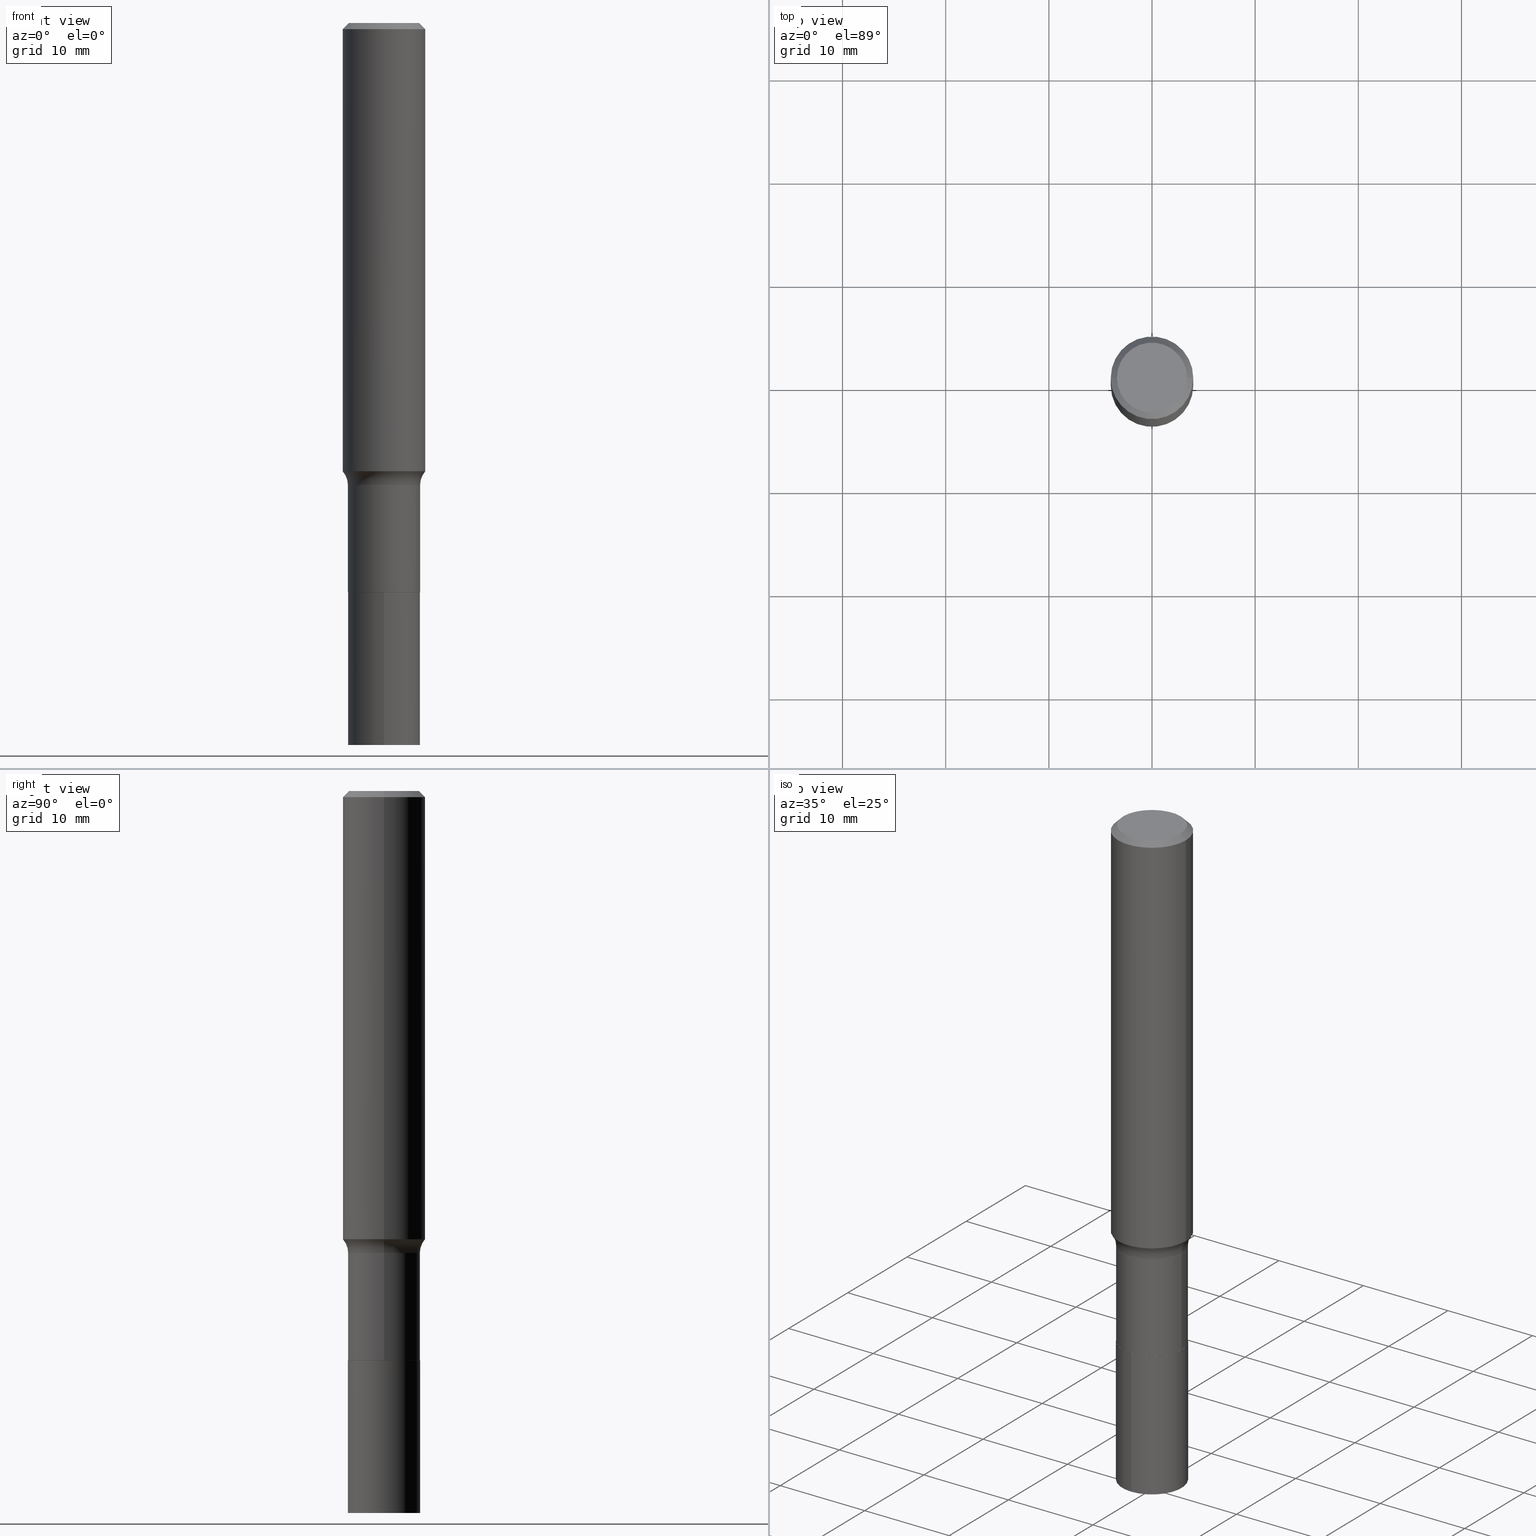
[diagram: canonical four-view strip — front | top / right | iso, engineering-drawing reading convention]
A machine part, canonical four-view strip (front | top / right | iso — engineering-drawing reading convention). The complete STEP part file that produces these views, byte-faithful:
ISO-10303-21;
HEADER;
FILE_DESCRIPTION (( 'STEP AP203' ),
    '1' );
FILE_NAME ('67116.STEP',
    '2024-04-19T15:53:53',
    ( '' ),
    ( '' ),
    'SwSTEP 2.0',
    'SolidWorks 2023',
    '' );
FILE_SCHEMA (( 'CONFIG_CONTROL_DESIGN' ));
ENDSEC;

DATA;
#1 = DIRECTION ( 'NONE',  ( 1.000000000000000000, -6.982962677686265922E-15, 0.000000000000000000 ) ) ;
#2 = CARTESIAN_POINT ( 'NONE',  ( 5.313759168959684125E-29, -7.586639801172272343E-15, -2.172900000000000276 ) ) ;
#3 =( CONVERSION_BASED_UNIT ( 'INCH', #321 ) LENGTH_UNIT ( ) NAMED_UNIT ( #246 ) );
#4 = CARTESIAN_POINT ( 'NONE',  ( 0.1575000000000000844, -1.099816621735587677E-15, 7.679978421878603638E-30 ) ) ;
#5 = DIRECTION ( 'NONE',  ( -2.445468806185136597E-29, 3.491481338843145583E-15, 1.000000000000000000 ) ) ;
#6 = PERSON_AND_ORGANIZATION_ROLE ( 'design_owner' ) ;
#7 = ADVANCED_FACE ( 'NONE', ( #42 ), #16, .T. ) ;
#8 = DIRECTION ( 'NONE',  ( 1.000000000000000000, -6.982962677686266711E-15, 4.876170806578254279E-29 ) ) ;
#9 = ADVANCED_FACE ( 'NONE', ( #414 ), #193, .T. ) ;
#10 = VERTEX_POINT ( 'NONE', #20 ) ;
#11 = APPROVAL_ROLE ( '' ) ;
#12 = CARTESIAN_POINT ( 'NONE',  ( 4.312828786588107303E-29, -6.157576489183771935E-15, -1.763600000000000056 ) ) ;
#13 = ORIENTED_EDGE ( 'NONE', *, *, #41, .T. ) ;
#14 = ORIENTED_EDGE ( 'NONE', *, *, #442, .T. ) ;
#15 = ORIENTED_EDGE ( 'NONE', *, *, #260, .F. ) ;
#16 = CONICAL_SURFACE ( 'NONE', #257, 0.1575000000000000011, 0.7853981633974452814 ) ;
#17 = ORIENTED_EDGE ( 'NONE', *, *, #304, .F. ) ;
#18 = CIRCLE ( 'NONE', #287, 0.1575000000000001954 ) ;
#19 = EDGE_LOOP ( 'NONE', ( #159, #198, #228, #377 ) ) ;
#20 = CARTESIAN_POINT ( 'NONE',  ( -0.1377999999999999781, -5.892107384965892698E-15, -1.763600000000000056 ) ) ;
#21 = EDGE_CURVE ( 'NONE', #425, #10, #161, .T. ) ;
#22 = DIRECTION ( 'NONE',  ( -2.445843148108282569E-29, 3.490945259902981668E-15, 1.000000000000000000 ) ) ;
#23 = DIRECTION ( 'NONE',  ( -2.445468806185136597E-29, 3.491481338843145583E-15, 1.000000000000000000 ) ) ;
#24 = VERTEX_POINT ( 'NONE', #78 ) ;
#25 = CARTESIAN_POINT ( 'NONE',  ( 5.312536434556590203E-29, -7.584894060502850050E-15, -2.172400000000000109 ) ) ;
#26 = DIRECTION ( 'NONE',  ( 1.000000000000000000, -6.982962677686269866E-15, 0.000000000000000000 ) ) ;
#27 = ADVANCED_FACE ( 'NONE', ( #223 ), #340, .T. ) ;
#28 = DIRECTION ( 'NONE',  ( -2.445843148108282849E-29, 3.490945259902982062E-15, 1.000000000000000000 ) ) ;
#29 = CYLINDRICAL_SURFACE ( 'NONE', #90, 0.1575000000000000844 ) ;
#30 = AXIS2_PLACEMENT_3D ( 'NONE', #111, #142, #397 ) ;
#31 = DIRECTION ( 'NONE',  ( 1.000000000000000000, -6.982962677686265922E-15, 0.000000000000000000 ) ) ;
#32 = CARTESIAN_POINT ( 'NONE',  ( -9.622522569851000294E-16, -0.1378000000000096370, -2.755900000000000016 ) ) ;
#33 = EDGE_CURVE ( 'NONE', #24, #270, #449, .T. ) ;
#34 = CARTESIAN_POINT ( 'NONE',  ( 0.1378000000000000058, -8.547146317488017527E-15, -2.172400000000000109 ) ) ;
#35 = CARTESIAN_POINT ( 'NONE',  ( 5.777420054612418477E-31, -8.248624663016979071E-17, -0.02362500000000013547 ) ) ;
#36 = AXIS2_PLACEMENT_3D ( 'NONE', #385, #125, #460 ) ;
#37 = DIRECTION ( 'NONE',  ( -2.445468806185136597E-29, 3.491481338843145583E-15, 1.000000000000000000 ) ) ;
#38 = DATE_AND_TIME ( #365, #191 ) ;
#39 = CARTESIAN_POINT ( 'NONE',  ( -8.908126786626385992E-30, -2.054916890174590023E-14, -2.755900000000000016 ) ) ;
#40 = APPROVAL_ROLE ( '' ) ;
#41 = EDGE_CURVE ( 'NONE', #301, #24, #234, .T. ) ;
#42 = FACE_OUTER_BOUND ( 'NONE', #85, .T. ) ;
#43 = CC_DESIGN_SECURITY_CLASSIFICATION ( #280, ( #438 ) ) ;
#44 = PERSON_AND_ORGANIZATION ( #243, #215 ) ;
#45 = ORIENTED_EDGE ( 'NONE', *, *, #56, .T. ) ;
#46 = DATE_AND_TIME ( #255, #176 ) ;
#47 = EDGE_LOOP ( 'NONE', ( #452, #292, #14, #348 ) ) ;
#48 = AXIS2_PLACEMENT_3D ( 'NONE', #12, #153, #291 ) ;
#49 = PERSON_AND_ORGANIZATION_ROLE ( 'classification_officer' ) ;
#50 = EDGE_LOOP ( 'NONE', ( #241, #55, #195, #17 ) ) ;
#51 = CC_DESIGN_APPROVAL ( #391, ( #280 ) ) ;
#52 = AXIS2_PLACEMENT_3D ( 'NONE', #163, #129, #169 ) ;
#53 = APPROVAL ( #118, 'UNSPECIFIED' ) ;
#54 = DIRECTION ( 'NONE',  ( -6.982962677686265922E-15, -1.000000000000000000, 3.964946289788480896E-15 ) ) ;
#55 = ORIENTED_EDGE ( 'NONE', *, *, #465, .T. ) ;
#56 = EDGE_CURVE ( 'NONE', #270, #24, #273, .T. ) ;
#57 = FACE_OUTER_BOUND ( 'NONE', #409, .T. ) ;
#58 = APPROVAL ( #376, 'UNSPECIFIED' ) ;
#59 = CARTESIAN_POINT ( 'NONE',  ( -5.014852121625176635E-47, 7.159879756154496113E-33, 2.050671065172246833E-18 ) ) ;
#60 = AXIS2_PLACEMENT_3D ( 'NONE', #267, #264, #357 ) ;
#61 = ORIENTED_EDGE ( 'NONE', *, *, #63, .T. ) ;
#62 = CARTESIAN_POINT ( 'NONE',  ( 9.791278898774711484E-16, 0.1377999999999924285, -2.172900000000000276 ) ) ;
#63 = EDGE_CURVE ( 'NONE', #441, #301, #141, .T. ) ;
#64 = PRODUCT ( '67116', '67116', '', ( #221 ) ) ;
#65 = DIRECTION ( 'NONE',  ( -2.445843148108282849E-29, 3.490945259902982062E-15, 1.000000000000000000 ) ) ;
#66 = DIRECTION ( 'NONE',  ( -2.445468806185136877E-29, 3.491481338843145188E-15, 1.000000000000000000 ) ) ;
#67 = VECTOR ( 'NONE', #402, 39.37007874015748143 ) ;
#68 = CC_DESIGN_PERSON_AND_ORGANIZATION_ASSIGNMENT ( #448, #253, ( #220 ) ) ;
#69 = DIRECTION ( 'NONE',  ( -2.445843148108282569E-29, 3.490945259902981668E-15, 1.000000000000000000 ) ) ;
#70 = AXIS2_PLACEMENT_3D ( 'NONE', #149, #185, #8 ) ;
#71 =( LENGTH_UNIT ( ) NAMED_UNIT ( * ) SI_UNIT ( $, .METRE. ) );
#72 = DIRECTION ( 'NONE',  ( -0.7071067811865453523, 2.468850131082234184E-15, -0.7071067811865496822 ) ) ;
#73 = FACE_OUTER_BOUND ( 'NONE', #372, .T. ) ;
#74 = AXIS2_PLACEMENT_3D ( 'NONE', #39, #433, #108 ) ;
#75 = PERSON_AND_ORGANIZATION ( #243, #215 ) ;
#76 = CARTESIAN_POINT ( 'NONE',  ( 0.1377999999999999781, -7.119828746168939412E-15, -1.763600000000000056 ) ) ;
#77 = ADVANCED_FACE ( 'NONE', ( #194 ), #99, .F. ) ;
#78 = CARTESIAN_POINT ( 'NONE',  ( 9.791278898774855451E-16, 0.1377999999999924285, -2.172900000000000276 ) ) ;
#79 = COORDINATED_UNIVERSAL_TIME_OFFSET ( 5, 0, .BEHIND. ) ;
#80 = DIRECTION ( 'NONE',  ( -2.445468806185136597E-29, 3.491481338843145583E-15, 1.000000000000000000 ) ) ;
#81 = ORIENTED_EDGE ( 'NONE', *, *, #430, .T. ) ;
#82 = EDGE_LOOP ( 'NONE', ( #297, #81, #254, #450 ) ) ;
#83 = DIRECTION ( 'NONE',  ( -2.445468806185136597E-29, 3.491481338843145583E-15, 1.000000000000000000 ) ) ;
#84 = PERSON_AND_ORGANIZATION_ROLE ( 'design_supplier' ) ;
#85 = EDGE_LOOP ( 'NONE', ( #459, #309, #130, #132 ) ) ;
#86 = CARTESIAN_POINT ( 'NONE',  ( 5.777420054612418477E-31, -8.248624663016979071E-17, -0.02362500000000013547 ) ) ;
#87 = ORIENTED_EDGE ( 'NONE', *, *, #226, .F. ) ;
#88 = CARTESIAN_POINT ( 'NONE',  ( 4.312828786588107303E-29, -6.157576489183771935E-15, -1.763600000000000056 ) ) ;
#89 = DIRECTION ( 'NONE',  ( 1.000000000000000000, -6.982962677686265922E-15, 4.876176775795935793E-29 ) ) ;
#90 = AXIS2_PLACEMENT_3D ( 'NONE', #237, #275, #245 ) ;
#91 = EDGE_CURVE ( 'NONE', #184, #341, #387, .T. ) ;
#92 = ORIENTED_EDGE ( 'NONE', *, *, #105, .T. ) ;
#93 = ADVANCED_FACE ( 'NONE', ( #311 ), #235, .F. ) ;
#94 = DIRECTION ( 'NONE',  ( -2.438088387897960049E-29, 3.491481338843145188E-15, 1.000000000000000000 ) ) ;
#95 = ORIENTED_EDGE ( 'NONE', *, *, #33, .T. ) ;
#96 = LINE ( 'NONE', #424, #238 ) ;
#97 = EDGE_LOOP ( 'NONE', ( #455, #236, #467, #87 ) ) ;
#98 = APPROVAL_PERSON_ORGANIZATION ( #44, #391, #11 ) ;
#99 = PLANE ( 'NONE',  #324 ) ;
#100 = AXIS2_PLACEMENT_3D ( 'NONE', #456, #22, #269 ) ;
#101 = AXIS2_PLACEMENT_3D ( 'NONE', #204, #131, #54 ) ;
#102 = CARTESIAN_POINT ( 'NONE',  ( 5.313759168959683004E-29, -7.586639801172270765E-15, -2.172899999999999832 ) ) ;
#103 = EDGE_LOOP ( 'NONE', ( #431, #261, #155, #119 ) ) ;
#104 = DIRECTION ( 'NONE',  ( 1.000000000000000000, -6.982962677686265922E-15, 0.000000000000000000 ) ) ;
#105 = EDGE_CURVE ( 'NONE', #256, #425, #308, .T. ) ;
#106 = TOROIDAL_SURFACE ( 'NONE', #445, 0.2177999999999999936, 0.08000000000000009881 ) ;
#107 = PRODUCT_DEFINITION_SHAPE ( 'NONE', 'NONE',  #220 ) ;
#108 = DIRECTION ( 'NONE',  ( -6.982962677686265922E-15, -1.000000000000000000, 3.490945259902982062E-15 ) ) ;
#109 = DIRECTION ( 'NONE',  ( 0.7071067811864388819, -2.468850131081119129E-15, 0.7071067811866561525 ) ) ;
#110 = DIRECTION ( 'NONE',  ( 1.000000000000000000, -6.982962677686269866E-15, 0.000000000000000000 ) ) ;
#111 = CARTESIAN_POINT ( 'NONE',  ( -0.2177999999999999936, -4.610014410698272986E-15, -1.763600000000000056 ) ) ;
#112 = EDGE_CURVE ( 'NONE', #160, #256, #232, .T. ) ;
#113 = DIRECTION ( 'NONE',  ( 1.000000000000000000, -6.982962677686266711E-15, 4.876170806578254279E-29 ) ) ;
#114 = DIRECTION ( 'NONE',  ( -2.445468806185136597E-29, 3.491481338843145583E-15, 1.000000000000000000 ) ) ;
#115 = AXIS2_PLACEMENT_3D ( 'NONE', #214, #436, #113 ) ;
#116 =( NAMED_UNIT ( * ) SI_UNIT ( $, .STERADIAN. ) SOLID_ANGLE_UNIT ( ) );
#117 = CONICAL_SURFACE ( 'NONE', #374, 0.1373000000000000054, 0.7853981633972946241 ) ;
#118 = APPROVAL_STATUS ( 'not_yet_approved' ) ;
#119 = ORIENTED_EDGE ( 'NONE', *, *, #307, .F. ) ;
#120 = COORDINATED_UNIVERSAL_TIME_OFFSET ( 5, 0, .BEHIND. ) ;
#121 = PERSON_AND_ORGANIZATION ( #243, #215 ) ;
#122 = ADVANCED_FACE ( 'NONE', ( #57 ), #197, .F. ) ;
#123 = DIRECTION ( 'NONE',  ( -1.000000000000000000, 6.982962677686265922E-15, 0.000000000000000000 ) ) ;
#124 = ADVANCED_FACE ( 'NONE', ( #381 ), #170, .T. ) ;
#125 = DIRECTION ( 'NONE',  ( 2.445468806185136597E-29, -3.491481338843145583E-15, -1.000000000000000000 ) ) ;
#126 = CIRCLE ( 'NONE', #380, 0.1575000000000001954 ) ;
#127 = UNCERTAINTY_MEASURE_WITH_UNIT (LENGTH_MEASURE( 1.000000000000000082E-05 ), #3, 'distance_accuracy_value', 'NONE');
#128 = CIRCLE ( 'NONE', #283, 0.1378000000000000058 ) ;
#129 = DIRECTION ( 'NONE',  ( -2.445843148108282569E-29, 3.490945259902981668E-15, 1.000000000000000000 ) ) ;
#130 = ORIENTED_EDGE ( 'NONE', *, *, #91, .T. ) ;
#131 = DIRECTION ( 'NONE',  ( -2.445843148108282569E-29, 3.490945259902981668E-15, 1.000000000000000000 ) ) ;
#132 = ORIENTED_EDGE ( 'NONE', *, *, #284, .F. ) ;
#133 = FACE_OUTER_BOUND ( 'NONE', #103, .T. ) ;
#134 = AXIS2_PLACEMENT_3D ( 'NONE', #242, #206, #420 ) ;
#135 = VECTOR ( 'NONE', #421, 39.37007874015748143 ) ;
#136 = ORIENTED_EDGE ( 'NONE', *, *, #139, .F. ) ;
#137 = DIRECTION ( 'NONE',  ( -2.445468806185136597E-29, 3.491481338843145583E-15, 1.000000000000000000 ) ) ;
#138 = PLANE ( 'NONE',  #74 ) ;
#139 = EDGE_CURVE ( 'NONE', #301, #441, #258, .T. ) ;
#140 = LINE ( 'NONE', #279, #67 ) ;
#141 = CIRCLE ( 'NONE', #60, 0.1378000000000000058 ) ;
#142 = DIRECTION ( 'NONE',  ( 7.105427357601001859E-15, 1.000000000000000000, -3.491481338843145583E-15 ) ) ;
#143 = DIRECTION ( 'NONE',  ( 1.000000000000000000, -6.982962677686265922E-15, 0.000000000000000000 ) ) ;
#144 = ADVANCED_FACE ( 'NONE', ( #346 ), #303, .T. ) ;
#145 = CARTESIAN_POINT ( 'NONE',  ( 0.2177999999999999936, -7.678465760383841064E-15, -1.763600000000000056 ) ) ;
#146 = APPROVAL_STATUS ( 'not_yet_approved' ) ;
#147 = CIRCLE ( 'NONE', #115, 0.1338749999999999940 ) ;
#148 = APPROVAL_DATE_TIME ( #299, #58 ) ;
#149 = CARTESIAN_POINT ( 'NONE',  ( -1.002970424325035327E-46, 1.431975951230899223E-32, 4.101342130344493665E-18 ) ) ;
#150 = EDGE_CURVE ( 'NONE', #256, #160, #342, .T. ) ;
#151 = ORIENTED_EDGE ( 'NONE', *, *, #379, .T. ) ;
#152 = SHAPE_DEFINITION_REPRESENTATION ( #107, #422 ) ;
#153 = DIRECTION ( 'NONE',  ( -2.445468806185136597E-29, 3.491481338843145583E-15, 1.000000000000000000 ) ) ;
#154 = ORIENTED_EDGE ( 'NONE', *, *, #210, .T. ) ;
#155 = ORIENTED_EDGE ( 'NONE', *, *, #354, .T. ) ;
#156 = EDGE_CURVE ( 'NONE', #441, #270, #96, .T. ) ;
#157 = DATE_TIME_ROLE ( 'creation_date' ) ;
#158 = VECTOR ( 'NONE', #65, 39.37007874015748143 ) ;
#159 = ORIENTED_EDGE ( 'NONE', *, *, #196, .F. ) ;
#160 = VERTEX_POINT ( 'NONE', #389 ) ;
#161 = LINE ( 'NONE', #302, #322 ) ;
#162 = ORIENTED_EDGE ( 'NONE', *, *, #252, .T. ) ;
#163 = CARTESIAN_POINT ( 'NONE',  ( 5.313759168959683004E-29, -7.586639801172270765E-15, -2.172899999999999832 ) ) ;
#164 = CLOSED_SHELL ( 'NONE', ( #144, #316, #325, #122 ) ) ;
#165 = DIRECTION ( 'NONE',  ( -2.445468806185136597E-29, 3.491481338843145583E-15, 1.000000000000000000 ) ) ;
#166 = ORIENTED_EDGE ( 'NONE', *, *, #465, .F. ) ;
#167 = CARTESIAN_POINT ( 'NONE',  ( 0.000000000000000000, 0.000000000000000000, 0.000000000000000000 ) ) ;
#168 = DIRECTION ( 'NONE',  ( -2.445468806185136597E-29, 3.491481338843145583E-15, 1.000000000000000000 ) ) ;
#169 = DIRECTION ( 'NONE',  ( -6.982962677686265922E-15, -1.000000000000000000, 3.964946289788480896E-15 ) ) ;
#170 = CYLINDRICAL_SURFACE ( 'NONE', #451, 0.1378000000000000058 ) ;
#171 = AXIS2_PLACEMENT_3D ( 'NONE', #59, #457, #382 ) ;
#172 = ORIENTED_EDGE ( 'NONE', *, *, #354, .F. ) ;
#173 = ADVANCED_FACE ( 'NONE', ( #133 ), #29, .T. ) ;
#174 = CARTESIAN_POINT ( 'NONE',  ( -0.1338749999999999940, 9.760872517903331886E-16, 4.101342130337811459E-18 ) ) ;
#175 = FACE_OUTER_BOUND ( 'NONE', #230, .T. ) ;
#176 = LOCAL_TIME ( 11, 53, 53.00000000000000000, #120 ) ;
#177 = FACE_OUTER_BOUND ( 'NONE', #272, .T. ) ;
#178 = ADVANCED_FACE ( 'NONE', ( #73 ), #359, .F. ) ;
#179 = AXIS2_PLACEMENT_3D ( 'NONE', #353, #427, #26 ) ;
#180 = CARTESIAN_POINT ( 'NONE',  ( 5.313759168959684125E-29, -7.586639801172272343E-15, -2.172900000000000276 ) ) ;
#181 = DATE_TIME_ROLE ( 'classification_date' ) ;
#182 = APPROVAL_ROLE ( '' ) ;
#183 = CC_DESIGN_PERSON_AND_ORGANIZATION_ASSIGNMENT ( #337, #84, ( #438 ) ) ;
#184 = VERTEX_POINT ( 'NONE', #361 ) ;
#185 = DIRECTION ( 'NONE',  ( -2.445468806185136597E-29, 3.491481338843145583E-15, 1.000000000000000000 ) ) ;
#186 = CIRCLE ( 'NONE', #30, 0.08000000000000009881 ) ;
#187 = COORDINATED_UNIVERSAL_TIME_OFFSET ( 5, 0, .BEHIND. ) ;
#188 = CC_DESIGN_DATE_AND_TIME_ASSIGNMENT ( #410, #157, ( #220 ) ) ;
#189 = APPROVAL_DATE_TIME ( #46, #53 ) ;
#190 = FACE_OUTER_BOUND ( 'NONE', #97, .T. ) ;
#191 = LOCAL_TIME ( 11, 53, 53.00000000000000000, #286 ) ;
#192 = ORIENTED_EDGE ( 'NONE', *, *, #41, .F. ) ;
#193 = CYLINDRICAL_SURFACE ( 'NONE', #296, 0.1575000000000000844 ) ;
#194 = FACE_OUTER_BOUND ( 'NONE', #461, .T. ) ;
#195 = ORIENTED_EDGE ( 'NONE', *, *, #411, .T. ) ;
#196 = EDGE_CURVE ( 'NONE', #300, #184, #140, .T. ) ;
#197 = PLANE ( 'NONE',  #330 ) ;
#198 = ORIENTED_EDGE ( 'NONE', *, *, #210, .F. ) ;
#199 = DIRECTION ( 'NONE',  ( 1.000000000000000000, -6.982962677686267499E-15, 4.883557194083112901E-29 ) ) ;
#200 = AXIS2_PLACEMENT_3D ( 'NONE', #180, #114, #429 ) ;
#201 = CARTESIAN_POINT ( 'NONE',  ( -0.1373000000000000054, -6.611064624973654947E-15, -2.172900000000000276 ) ) ;
#202 = ORIENTED_EDGE ( 'NONE', *, *, #91, .F. ) ;
#203 = CARTESIAN_POINT ( 'NONE',  ( -0.1378000000000000336, -5.892107384965891909E-15, -2.172400000000000109 ) ) ;
#204 = CARTESIAN_POINT ( 'NONE',  ( 6.739685724306814341E-29, -9.621860887695710828E-15, -2.755900000000000460 ) ) ;
#205 = CC_DESIGN_DATE_AND_TIME_ASSIGNMENT ( #218, #181, ( #280 ) ) ;
#206 = DIRECTION ( 'NONE',  ( -2.445843148108282569E-29, 3.490945259902981668E-15, 1.000000000000000000 ) ) ;
#207 = MANIFOLD_SOLID_BREP ( 'Body-Move/Copy2[2]', #395 ) ;
#208 = ORIENTED_EDGE ( 'NONE', *, *, #156, .T. ) ;
#209 = LOCAL_TIME ( 11, 53, 53.00000000000000000, #187 ) ;
#210 = EDGE_CURVE ( 'NONE', #315, #300, #147, .T. ) ;
#211 = DIRECTION ( 'NONE',  ( -2.445468806185136877E-29, 3.491481338843145188E-15, 1.000000000000000000 ) ) ;
#212 = AXIS2_PLACEMENT_3D ( 'NONE', #463, #355, #271 ) ;
#213 = DIRECTION ( 'NONE',  ( -6.982962677686265922E-15, -1.000000000000000000, 3.964946289788480896E-15 ) ) ;
#214 = CARTESIAN_POINT ( 'NONE',  ( -1.002970424325035327E-46, 1.431975951230899223E-32, 4.101342130344493665E-18 ) ) ;
#215 = ORGANIZATION ( 'UNSPECIFIED', 'UNSPECIFIED', '' ) ;
#216 = LINE ( 'NONE', #363, #408 ) ;
#217 = CIRCLE ( 'NONE', #419, 0.08000000000000009881 ) ;
#218 = DATE_AND_TIME ( #225, #446 ) ;
#219 = DIRECTION ( 'NONE',  ( -6.982962677686266711E-15, -1.000000000000000000, 3.491481338843145583E-15 ) ) ;
#220 = PRODUCT_DEFINITION ( 'UNKNOWN', '', #438, #334 ) ;
#221 = MECHANICAL_CONTEXT ( 'NONE', #416, 'mechanical' ) ;
#222 = CYLINDRICAL_SURFACE ( 'NONE', #263, 0.1378000000000000058 ) ;
#223 = FACE_OUTER_BOUND ( 'NONE', #19, .T. ) ;
#224 = ADVANCED_FACE ( 'NONE', ( #435 ), #352, .T. ) ;
#225 = CALENDAR_DATE ( 2024, 19, 4 ) ;
#226 = EDGE_CURVE ( 'NONE', #332, #312, #319, .T. ) ;
#227 = VERTEX_POINT ( 'NONE', #400 ) ;
#228 = ORIENTED_EDGE ( 'NONE', *, *, #284, .T. ) ;
#229 = SECURITY_CLASSIFICATION_LEVEL ( 'unclassified' ) ;
#230 = EDGE_LOOP ( 'NONE', ( #390, #92, #335, #278 ) ) ;
#231 = ORIENTED_EDGE ( 'NONE', *, *, #156, .F. ) ;
#232 = CIRCLE ( 'NONE', #179, 0.1373000000000000054 ) ;
#233 = CARTESIAN_POINT ( 'NONE',  ( 4.312828786588107303E-29, -6.157576489183771935E-15, -1.763600000000000056 ) ) ;
#234 = LINE ( 'NONE', #62, #158 ) ;
#235 = PLANE ( 'NONE',  #171 ) ;
#236 = ORIENTED_EDGE ( 'NONE', *, *, #21, .T. ) ;
#237 = CARTESIAN_POINT ( 'NONE',  ( 0.000000000000000000, 0.000000000000000000, 0.000000000000000000 ) ) ;
#238 = VECTOR ( 'NONE', #28, 39.37007874015748143 ) ;
#239 = CC_DESIGN_PERSON_AND_ORGANIZATION_ASSIGNMENT ( #75, #6, ( #64 ) ) ;
#240 = CARTESIAN_POINT ( 'NONE',  ( 5.777420054612418477E-31, -8.248624663016979071E-17, -0.02362500000000013547 ) ) ;
#241 = ORIENTED_EDGE ( 'NONE', *, *, #244, .F. ) ;
#242 = CARTESIAN_POINT ( 'NONE',  ( 5.313759168959683004E-29, -7.586639801172270765E-15, -2.172899999999999832 ) ) ;
#243 = PERSON ( 'UNSPECIFIED', 'UNSPECIFIED', 'UNSPECIFIED', ('UNSPECIFIED'), ('UNSPECIFIED'), ('UNSPECIFIED') ) ;
#244 = EDGE_CURVE ( 'NONE', #412, #227, #126, .T. ) ;
#245 = DIRECTION ( 'NONE',  ( 1.000000000000000000, -6.982962677686267499E-15, 4.876176775795936353E-29 ) ) ;
#246 = DIMENSIONAL_EXPONENTS ( 1.000000000000000000, 0.000000000000000000, 0.000000000000000000, 0.000000000000000000, 0.000000000000000000, 0.000000000000000000, 0.000000000000000000 ) ;
#247 = CYLINDRICAL_SURFACE ( 'NONE', #262, 0.1378000000000000058 ) ;
#248 = CARTESIAN_POINT ( 'NONE',  ( 0.1378000000000000058, -9.622522569851674770E-16, 6.719371597046798536E-30 ) ) ;
#249 = CARTESIAN_POINT ( 'NONE',  ( -0.1575000000000000011, 1.017330375105417295E-15, -0.02362500000000013547 ) ) ;
#250 = AXIS2_PLACEMENT_3D ( 'NONE', #285, #137, #468 ) ;
#251 = CARTESIAN_POINT ( 'NONE',  ( 0.000000000000000000, 0.000000000000000000, 0.000000000000000000 ) ) ;
#252 = EDGE_CURVE ( 'NONE', #412, #341, #216, .T. ) ;
#253 = PERSON_AND_ORGANIZATION_ROLE ( 'creator' ) ;
#254 = ORIENTED_EDGE ( 'NONE', *, *, #226, .T. ) ;
#255 = CALENDAR_DATE ( 2024, 19, 4 ) ;
#256 = VERTEX_POINT ( 'NONE', #392 ) ;
#257 = AXIS2_PLACEMENT_3D ( 'NONE', #86, #454, #123 ) ;
#258 = CIRCLE ( 'NONE', #101, 0.1378000000000000058 ) ;
#259 = PERSON_AND_ORGANIZATION ( #243, #215 ) ;
#260 = EDGE_CURVE ( 'NONE', #227, #412, #18, .T. ) ;
#261 = ORIENTED_EDGE ( 'NONE', *, *, #244, .T. ) ;
#262 = AXIS2_PLACEMENT_3D ( 'NONE', #314, #69, #213 ) ;
#263 = AXIS2_PLACEMENT_3D ( 'NONE', #338, #368, #329 ) ;
#264 = DIRECTION ( 'NONE',  ( -2.445843148108282569E-29, 3.490945259902981668E-15, 1.000000000000000000 ) ) ;
#265 = CC_DESIGN_PERSON_AND_ORGANIZATION_ASSIGNMENT ( #259, #327, ( #438 ) ) ;
#266 = AXIS2_PLACEMENT_3D ( 'NONE', #240, #23, #305 ) ;
#267 = CARTESIAN_POINT ( 'NONE',  ( 6.739685724306814341E-29, -9.621860887695710828E-15, -2.755900000000000460 ) ) ;
#268 = DIRECTION ( 'NONE',  ( -2.445468806185136597E-29, 3.491481338843145583E-15, 1.000000000000000000 ) ) ;
#269 = DIRECTION ( 'NONE',  ( -6.982962677686265922E-15, -1.000000000000000000, 3.964946289788480896E-15 ) ) ;
#270 = VERTEX_POINT ( 'NONE', #437 ) ;
#271 = DIRECTION ( 'NONE',  ( 1.000000000000000000, -6.982962677686269866E-15, 0.000000000000000000 ) ) ;
#272 = EDGE_LOOP ( 'NONE', ( #192, #339, #208, #351 ) ) ;
#273 = CIRCLE ( 'NONE', #134, 0.1378000000000000058 ) ;
#274 = AXIS2_PLACEMENT_3D ( 'NONE', #35, #5, #31 ) ;
#275 = DIRECTION ( 'NONE',  ( -2.445468806185136597E-29, 3.491481338843145583E-15, 1.000000000000000000 ) ) ;
#276 = ORIENTED_EDGE ( 'NONE', *, *, #413, .T. ) ;
#277 = CARTESIAN_POINT ( 'NONE',  ( 4.184263395270983918E-29, -5.974019183742183514E-15, -1.711027098234926713 ) ) ;
#278 = ORIENTED_EDGE ( 'NONE', *, *, #442, .F. ) ;
#279 = CARTESIAN_POINT ( 'NONE',  ( 0.1575000000000000011, -1.163014681279185964E-15, -0.02362500000000013547 ) ) ;
#280 = SECURITY_CLASSIFICATION ( '', '', #229 ) ;
#281 = DIRECTION ( 'NONE',  ( -2.445468806185136597E-29, 3.491481338843145583E-15, 1.000000000000000000 ) ) ;
#282 = DIRECTION ( 'NONE',  ( -2.445468806185136877E-29, 3.491481338843145188E-15, 1.000000000000000000 ) ) ;
#283 = AXIS2_PLACEMENT_3D ( 'NONE', #289, #80, #371 ) ;
#284 = EDGE_CURVE ( 'NONE', #315, #341, #362, .T. ) ;
#285 = CARTESIAN_POINT ( 'NONE',  ( 4.312828786588107303E-29, -6.157576489183771935E-15, -1.763600000000000056 ) ) ;
#286 = COORDINATED_UNIVERSAL_TIME_OFFSET ( 5, 0, .BEHIND. ) ;
#287 = AXIS2_PLACEMENT_3D ( 'NONE', #360, #37, #143 ) ;
#288 =( NAMED_UNIT ( * ) PLANE_ANGLE_UNIT ( ) SI_UNIT ( $, .RADIAN. ) );
#289 = CARTESIAN_POINT ( 'NONE',  ( 5.312536434556590203E-29, -7.584894060502850050E-15, -2.172400000000000109 ) ) ;
#290 = CIRCLE ( 'NONE', #70, 0.1338749999999999940 ) ;
#291 = DIRECTION ( 'NONE',  ( 1.000000000000000000, -6.982962677686267499E-15, 0.000000000000000000 ) ) ;
#292 = ORIENTED_EDGE ( 'NONE', *, *, #150, .T. ) ;
#293 = DIRECTION ( 'NONE',  ( 0.000000000000000000, 0.000000000000000000, 1.000000000000000000 ) ) ;
#294 = CC_DESIGN_APPROVAL ( #58, ( #438 ) ) ;
#295 = VECTOR ( 'NONE', #109, 39.37007874015748143 ) ;
#296 = AXIS2_PLACEMENT_3D ( 'NONE', #407, #83, #343 ) ;
#297 = ORIENTED_EDGE ( 'NONE', *, *, #21, .F. ) ;
#298 = CIRCLE ( 'NONE', #274, 0.1575000000000000011 ) ;
#299 = DATE_AND_TIME ( #331, #393 ) ;
#300 = VERTEX_POINT ( 'NONE', #326 ) ;
#301 = VERTEX_POINT ( 'NONE', #317 ) ;
#302 = CARTESIAN_POINT ( 'NONE',  ( -0.1378000000000000058, 9.791278898774180975E-16, -6.778292554371260034E-30 ) ) ;
#303 = CYLINDRICAL_SURFACE ( 'NONE', #52, 0.1378000000000000058 ) ;
#304 = EDGE_CURVE ( 'NONE', #227, #312, #217, .T. ) ;
#305 = DIRECTION ( 'NONE',  ( 1.000000000000000000, -6.982962677686265922E-15, 0.000000000000000000 ) ) ;
#306 = ORIENTED_EDGE ( 'NONE', *, *, #304, .T. ) ;
#307 = EDGE_CURVE ( 'NONE', #341, #184, #298, .T. ) ;
#308 = LINE ( 'NONE', #201, #135 ) ;
#309 = ORIENTED_EDGE ( 'NONE', *, *, #196, .T. ) ;
#310 = DIRECTION ( 'NONE',  ( -2.445468806185136597E-29, 3.491481338843145583E-15, 1.000000000000000000 ) ) ;
#311 = FACE_OUTER_BOUND ( 'NONE', #378, .T. ) ;
#312 = VERTEX_POINT ( 'NONE', #76 ) ;
#313 = VECTOR ( 'NONE', #66, 39.37007874015748143 ) ;
#314 = CARTESIAN_POINT ( 'NONE',  ( 5.313759168959683004E-29, -7.586639801172270765E-15, -2.172899999999999832 ) ) ;
#315 = VERTEX_POINT ( 'NONE', #174 ) ;
#316 = ADVANCED_FACE ( 'NONE', ( #366 ), #138, .F. ) ;
#317 = CARTESIAN_POINT ( 'NONE',  ( 9.791278898774782481E-16, 0.1377999999999903746, -2.755900000000000905 ) ) ;
#318 = LINE ( 'NONE', #434, #295 ) ;
#319 = LINE ( 'NONE', #248, #313 ) ;
#320 = APPLICATION_CONTEXT ( 'configuration controlled 3d designs of mechanical parts and assemblies' ) ;
#321 = LENGTH_MEASURE_WITH_UNIT ( LENGTH_MEASURE( 0.02539999999999999897 ), #71 );
#322 = VECTOR ( 'NONE', #403, 39.37007874015748143 ) ;
#323 = CARTESIAN_POINT ( 'NONE',  ( -0.1575000000000000011, -1.909147906364017274E-15, -0.02362500000000013547 ) ) ;
#324 = AXIS2_PLACEMENT_3D ( 'NONE', #418, #94, #89 ) ;
#325 = ADVANCED_FACE ( 'NONE', ( #177 ), #247, .T. ) ;
#326 = CARTESIAN_POINT ( 'NONE',  ( 0.1338749999999999940, -1.040731925365424925E-15, 4.101342130351401591E-18 ) ) ;
#327 = PERSON_AND_ORGANIZATION_ROLE ( 'creator' ) ;
#328 = DIRECTION ( 'NONE',  ( 1.000000000000000000, 0.000000000000000000, 0.000000000000000000 ) ) ;
#329 = DIRECTION ( 'NONE',  ( 1.000000000000000000, -6.982962677686265922E-15, 4.876176775795934672E-29 ) ) ;
#330 = AXIS2_PLACEMENT_3D ( 'NONE', #102, #350, #388 ) ;
#331 = CALENDAR_DATE ( 2024, 19, 4 ) ;
#332 = VERTEX_POINT ( 'NONE', #34 ) ;
#333 = CALENDAR_DATE ( 2024, 19, 4 ) ;
#334 = DESIGN_CONTEXT ( 'detailed design', #320, 'design' ) ;
#335 = ORIENTED_EDGE ( 'NONE', *, *, #398, .F. ) ;
#336 = CIRCLE ( 'NONE', #394, 0.1378000000000000058 ) ;
#337 = PERSON_AND_ORGANIZATION ( #243, #215 ) ;
#338 = CARTESIAN_POINT ( 'NONE',  ( 0.000000000000000000, 0.000000000000000000, 0.000000000000000000 ) ) ;
#339 = ORIENTED_EDGE ( 'NONE', *, *, #139, .T. ) ;
#340 = CONICAL_SURFACE ( 'NONE', #36, 0.1575000000000000011, 0.7853981633974452814 ) ;
#341 = VERTEX_POINT ( 'NONE', #323 ) ;
#342 = CIRCLE ( 'NONE', #212, 0.1373000000000000054 ) ;
#343 = DIRECTION ( 'NONE',  ( 1.000000000000000000, -6.982962677686267499E-15, 4.876176775795936353E-29 ) ) ;
#344 = ORIENTED_EDGE ( 'NONE', *, *, #112, .F. ) ;
#345 = ADVANCED_FACE ( 'NONE', ( #175 ), #117, .T. ) ;
#346 = FACE_OUTER_BOUND ( 'NONE', #443, .T. ) ;
#347 = CIRCLE ( 'NONE', #406, 0.1377999999999999781 ) ;
#348 = ORIENTED_EDGE ( 'NONE', *, *, #430, .F. ) ;
#349 = FACE_OUTER_BOUND ( 'NONE', #50, .T. ) ;
#350 = DIRECTION ( 'NONE',  ( 2.445843148108281728E-29, -3.490945259902982062E-15, -1.000000000000000000 ) ) ;
#351 = ORIENTED_EDGE ( 'NONE', *, *, #33, .F. ) ;
#352 = CONICAL_SURFACE ( 'NONE', #200, 0.1373000000000000054, 0.7853981633972946241 ) ;
#353 = CARTESIAN_POINT ( 'NONE',  ( 5.313759168959684125E-29, -7.586639801172272343E-15, -2.172900000000000276 ) ) ;
#354 = EDGE_CURVE ( 'NONE', #227, #184, #399, .T. ) ;
#355 = DIRECTION ( 'NONE',  ( -2.445468806185136597E-29, 3.491481338843145583E-15, 1.000000000000000000 ) ) ;
#356 = ORIENTED_EDGE ( 'NONE', *, *, #150, .F. ) ;
#357 = DIRECTION ( 'NONE',  ( -6.982962677686265922E-15, -1.000000000000000000, 3.964946289788480896E-15 ) ) ;
#358 =( GEOMETRIC_REPRESENTATION_CONTEXT ( 3 ) GLOBAL_UNCERTAINTY_ASSIGNED_CONTEXT ( ( #127 ) ) GLOBAL_UNIT_ASSIGNED_CONTEXT ( ( #3, #288, #116 ) ) REPRESENTATION_CONTEXT ( 'NONE', 'WORKASPACE' ) );
#359 = TOROIDAL_SURFACE ( 'NONE', #250, 0.2177999999999999936, 0.08000000000000009881 ) ;
#360 = CARTESIAN_POINT ( 'NONE',  ( 4.184263395270983918E-29, -5.974019183742183514E-15, -1.711027098234926713 ) ) ;
#361 = CARTESIAN_POINT ( 'NONE',  ( 0.1575000000000000011, -1.182302868365756679E-15, -0.02362500000000013547 ) ) ;
#362 = LINE ( 'NONE', #249, #364 ) ;
#363 = CARTESIAN_POINT ( 'NONE',  ( -0.1575000000000000844, 1.119104808822158392E-15, -7.747322767151481189E-30 ) ) ;
#364 = VECTOR ( 'NONE', #72, 39.37007874015748143 ) ;
#365 = CALENDAR_DATE ( 2024, 19, 4 ) ;
#366 = FACE_OUTER_BOUND ( 'NONE', #464, .T. ) ;
#367 = PERSON_AND_ORGANIZATION ( #243, #215 ) ;
#368 = DIRECTION ( 'NONE',  ( -2.445468806185136597E-29, 3.491481338843145583E-15, 1.000000000000000000 ) ) ;
#369 = PERSON_AND_ORGANIZATION ( #243, #215 ) ;
#370 = ADVANCED_FACE ( 'NONE', ( #190 ), #222, .T. ) ;
#371 = DIRECTION ( 'NONE',  ( 1.000000000000000000, -6.982962677686265922E-15, 0.000000000000000000 ) ) ;
#372 = EDGE_LOOP ( 'NONE', ( #166, #15, #306, #276 ) ) ;
#373 = ORIENTED_EDGE ( 'NONE', *, *, #63, .F. ) ;
#374 = AXIS2_PLACEMENT_3D ( 'NONE', #2, #281, #110 ) ;
#375 = MANIFOLD_SOLID_BREP ( 'Body-Move/Copy2[1]', #164 ) ;
#376 = APPROVAL_STATUS ( 'not_yet_approved' ) ;
#377 = ORIENTED_EDGE ( 'NONE', *, *, #307, .T. ) ;
#378 = EDGE_LOOP ( 'NONE', ( #154, #151 ) ) ;
#379 = EDGE_CURVE ( 'NONE', #300, #315, #290, .T. ) ;
#380 = AXIS2_PLACEMENT_3D ( 'NONE', #277, #466, #104 ) ;
#381 = FACE_OUTER_BOUND ( 'NONE', #82, .T. ) ;
#382 = DIRECTION ( 'NONE',  ( -1.000000000000000000, 6.982962677686265922E-15, -4.876176775795935793E-29 ) ) ;
#383 = ORIENTED_EDGE ( 'NONE', *, *, #260, .T. ) ;
#384 = APPROVAL_PERSON_ORGANIZATION ( #367, #53, #40 ) ;
#385 = CARTESIAN_POINT ( 'NONE',  ( 5.777420054612418477E-31, -8.248624663016979071E-17, -0.02362500000000013547 ) ) ;
#386 = ORIENTED_EDGE ( 'NONE', *, *, #56, .F. ) ;
#387 = CIRCLE ( 'NONE', #266, 0.1575000000000000011 ) ;
#388 = DIRECTION ( 'NONE',  ( 6.982962677686265922E-15, 1.000000000000000000, -3.490945259902982062E-15 ) ) ;
#389 = CARTESIAN_POINT ( 'NONE',  ( 0.1373000000000000054, -8.545400576818596813E-15, -2.172900000000000276 ) ) ;
#390 = ORIENTED_EDGE ( 'NONE', *, *, #112, .T. ) ;
#391 = APPROVAL ( #146, 'UNSPECIFIED' ) ;
#392 = CARTESIAN_POINT ( 'NONE',  ( -0.1373000000000000054, -6.608415397799542957E-15, -2.172900000000000276 ) ) ;
#393 = LOCAL_TIME ( 11, 53, 53.00000000000000000, #405 ) ;
#394 = AXIS2_PLACEMENT_3D ( 'NONE', #25, #310, #1 ) ;
#395 = CLOSED_SHELL ( 'NONE', ( #345, #7, #9, #415, #370, #124, #178, #173, #27, #93, #77, #224 ) ) ;
#396 = DIRECTION ( 'NONE',  ( 1.000000000000000000, -6.982962677686263555E-15, 0.000000000000000000 ) ) ;
#397 = DIRECTION ( 'NONE',  ( -1.000000000000000000, 7.105427357601001859E-15, 0.000000000000000000 ) ) ;
#398 = EDGE_CURVE ( 'NONE', #332, #425, #128, .T. ) ;
#399 = LINE ( 'NONE', #4, #453 ) ;
#400 = CARTESIAN_POINT ( 'NONE',  ( 0.1575000000000002787, -7.073835805477772572E-15, -1.711027098234926713 ) ) ;
#401 = APPLICATION_PROTOCOL_DEFINITION ( 'international standard', 'config_control_design', 1994, #320 ) ;
#402 = DIRECTION ( 'NONE',  ( 0.7071067811865453523, -7.319954787623248157E-15, -0.7071067811865496822 ) ) ;
#403 = DIRECTION ( 'NONE',  ( -2.445468806185136877E-29, 3.491481338843145188E-15, 1.000000000000000000 ) ) ;
#404 = CIRCLE ( 'NONE', #48, 0.1377999999999999781 ) ;
#405 = COORDINATED_UNIVERSAL_TIME_OFFSET ( 5, 0, .BEHIND. ) ;
#406 = AXIS2_PLACEMENT_3D ( 'NONE', #88, #168, #426 ) ;
#407 = CARTESIAN_POINT ( 'NONE',  ( 0.000000000000000000, 0.000000000000000000, 0.000000000000000000 ) ) ;
#408 = VECTOR ( 'NONE', #211, 39.37007874015748143 ) ;
#409 = EDGE_LOOP ( 'NONE', ( #45, #95 ) ) ;
#410 = DATE_AND_TIME ( #333, #209 ) ;
#411 = EDGE_CURVE ( 'NONE', #10, #312, #404, .T. ) ;
#412 = VERTEX_POINT ( 'NONE', #444 ) ;
#413 = EDGE_CURVE ( 'NONE', #312, #10, #347, .T. ) ;
#414 = FACE_OUTER_BOUND ( 'NONE', #428, .T. ) ;
#415 = ADVANCED_FACE ( 'NONE', ( #349 ), #106, .F. ) ;
#416 = APPLICATION_CONTEXT ( 'configuration controlled 3d designs of mechanical parts and assemblies' ) ;
#417 = CC_DESIGN_APPROVAL ( #53, ( #220 ) ) ;
#418 = CARTESIAN_POINT ( 'NONE',  ( 2.294742895181703316E-29, -1.191004293695746922E-14, -2.172900000000000276 ) ) ;
#419 = AXIS2_PLACEMENT_3D ( 'NONE', #145, #219, #396 ) ;
#420 = DIRECTION ( 'NONE',  ( -6.982962677686265922E-15, -1.000000000000000000, 3.964946289788480896E-15 ) ) ;
#421 = DIRECTION ( 'NONE',  ( -0.7071067811864388819, 7.493145998869961307E-15, 0.7071067811866561525 ) ) ;
#422 = ADVANCED_BREP_SHAPE_REPRESENTATION ( '67116', ( #375, #207, #423 ), #358 ) ;
#423 = AXIS2_PLACEMENT_3D ( 'NONE', #251, #293, #328 ) ;
#424 = CARTESIAN_POINT ( 'NONE',  ( -9.622522569851144261E-16, -0.1378000000000075831, -2.172899999999999388 ) ) ;
#425 = VERTEX_POINT ( 'NONE', #203 ) ;
#426 = DIRECTION ( 'NONE',  ( 1.000000000000000000, -6.982962677686267499E-15, 0.000000000000000000 ) ) ;
#427 = DIRECTION ( 'NONE',  ( -2.445468806185136597E-29, 3.491481338843145583E-15, 1.000000000000000000 ) ) ;
#428 = EDGE_LOOP ( 'NONE', ( #383, #162, #202, #172 ) ) ;
#429 = DIRECTION ( 'NONE',  ( 1.000000000000000000, -6.982962677686269866E-15, 0.000000000000000000 ) ) ;
#430 = EDGE_CURVE ( 'NONE', #425, #332, #336, .T. ) ;
#431 = ORIENTED_EDGE ( 'NONE', *, *, #252, .F. ) ;
#432 = APPROVAL_PERSON_ORGANIZATION ( #121, #58, #182 ) ;
#433 = DIRECTION ( 'NONE',  ( -2.445843148108281728E-29, 3.490945259902982062E-15, 1.000000000000000000 ) ) ;
#434 = CARTESIAN_POINT ( 'NONE',  ( 0.1373000000000000054, -8.545400576818596813E-15, -2.172900000000000276 ) ) ;
#435 = FACE_OUTER_BOUND ( 'NONE', #47, .T. ) ;
#436 = DIRECTION ( 'NONE',  ( -2.445468806185136597E-29, 3.491481338843145583E-15, 1.000000000000000000 ) ) ;
#437 = CARTESIAN_POINT ( 'NONE',  ( -9.622522569851144261E-16, -0.1378000000000075831, -2.172899999999999388 ) ) ;
#438 = PRODUCT_DEFINITION_FORMATION_WITH_SPECIFIED_SOURCE ( 'ANY', '', #64, .NOT_KNOWN. ) ;
#439 = APPROVAL_DATE_TIME ( #38, #391 ) ;
#440 = APPLICATION_PROTOCOL_DEFINITION ( 'international standard', 'config_control_design', 1994, #416 ) ;
#441 = VERTEX_POINT ( 'NONE', #32 ) ;
#442 = EDGE_CURVE ( 'NONE', #160, #332, #318, .T. ) ;
#443 = EDGE_LOOP ( 'NONE', ( #61, #13, #386, #231 ) ) ;
#444 = CARTESIAN_POINT ( 'NONE',  ( -0.1575000000000002787, -4.854914374920024333E-15, -1.711027098234926713 ) ) ;
#445 = AXIS2_PLACEMENT_3D ( 'NONE', #233, #268, #199 ) ;
#446 = LOCAL_TIME ( 11, 53, 53.00000000000000000, #79 ) ;
#447 = PRODUCT_RELATED_PRODUCT_CATEGORY ( 'detail', '', ( #64 ) ) ;
#448 = PERSON_AND_ORGANIZATION ( #243, #215 ) ;
#449 = CIRCLE ( 'NONE', #100, 0.1378000000000000058 ) ;
#450 = ORIENTED_EDGE ( 'NONE', *, *, #411, .F. ) ;
#451 = AXIS2_PLACEMENT_3D ( 'NONE', #167, #165, #458 ) ;
#452 = ORIENTED_EDGE ( 'NONE', *, *, #105, .F. ) ;
#453 = VECTOR ( 'NONE', #282, 39.37007874015748143 ) ;
#454 = DIRECTION ( 'NONE',  ( 2.445468806185136597E-29, -3.491481338843145583E-15, -1.000000000000000000 ) ) ;
#455 = ORIENTED_EDGE ( 'NONE', *, *, #398, .T. ) ;
#456 = CARTESIAN_POINT ( 'NONE',  ( 5.313759168959683004E-29, -7.586639801172270765E-15, -2.172899999999999832 ) ) ;
#457 = DIRECTION ( 'NONE',  ( 2.438088387897960049E-29, -3.491481338843145188E-15, -1.000000000000000000 ) ) ;
#458 = DIRECTION ( 'NONE',  ( 1.000000000000000000, -6.982962677686265922E-15, 4.876176775795934672E-29 ) ) ;
#459 = ORIENTED_EDGE ( 'NONE', *, *, #379, .F. ) ;
#460 = DIRECTION ( 'NONE',  ( -1.000000000000000000, 6.982962677686265922E-15, 0.000000000000000000 ) ) ;
#461 = EDGE_LOOP ( 'NONE', ( #344, #356 ) ) ;
#462 = CC_DESIGN_PERSON_AND_ORGANIZATION_ASSIGNMENT ( #369, #49, ( #280 ) ) ;
#463 = CARTESIAN_POINT ( 'NONE',  ( 5.313759168959684125E-29, -7.586639801172272343E-15, -2.172900000000000276 ) ) ;
#464 = EDGE_LOOP ( 'NONE', ( #373, #136 ) ) ;
#465 = EDGE_CURVE ( 'NONE', #412, #10, #186, .T. ) ;
#466 = DIRECTION ( 'NONE',  ( -2.445468806185136597E-29, 3.491481338843145583E-15, 1.000000000000000000 ) ) ;
#467 = ORIENTED_EDGE ( 'NONE', *, *, #413, .F. ) ;
#468 = DIRECTION ( 'NONE',  ( 1.000000000000000000, -6.982962677686267499E-15, 4.883557194083112901E-29 ) ) ;
ENDSEC;
END-ISO-10303-21;
